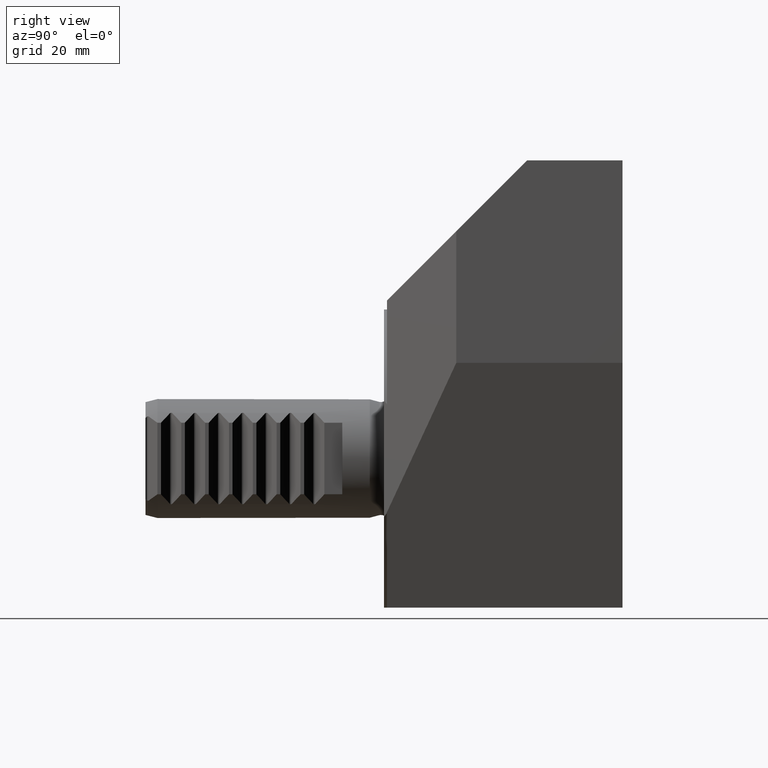
[diagram: clean part render]
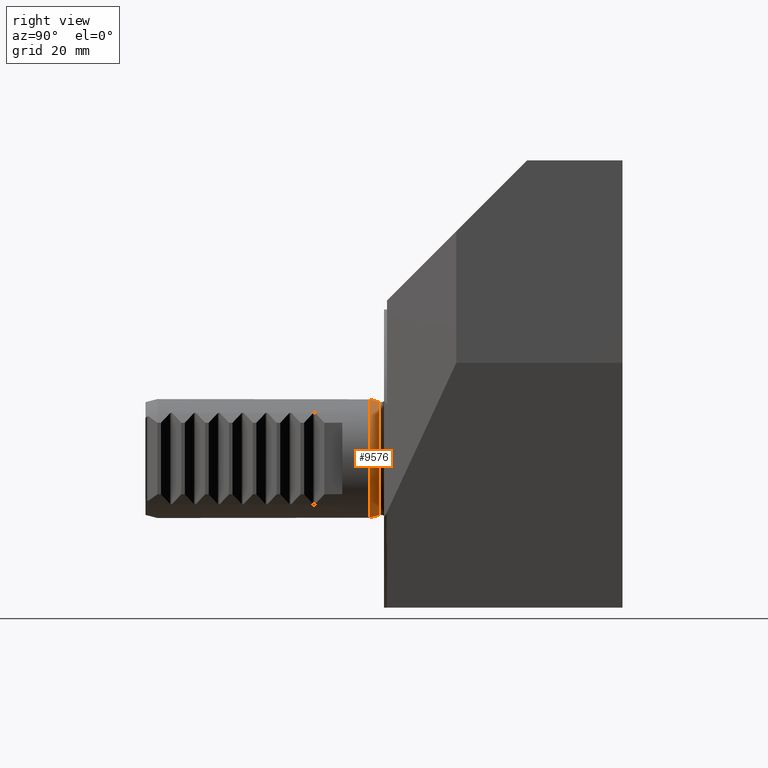
[diagram: same view with one face highlighted and labeled with its STEP entity id]
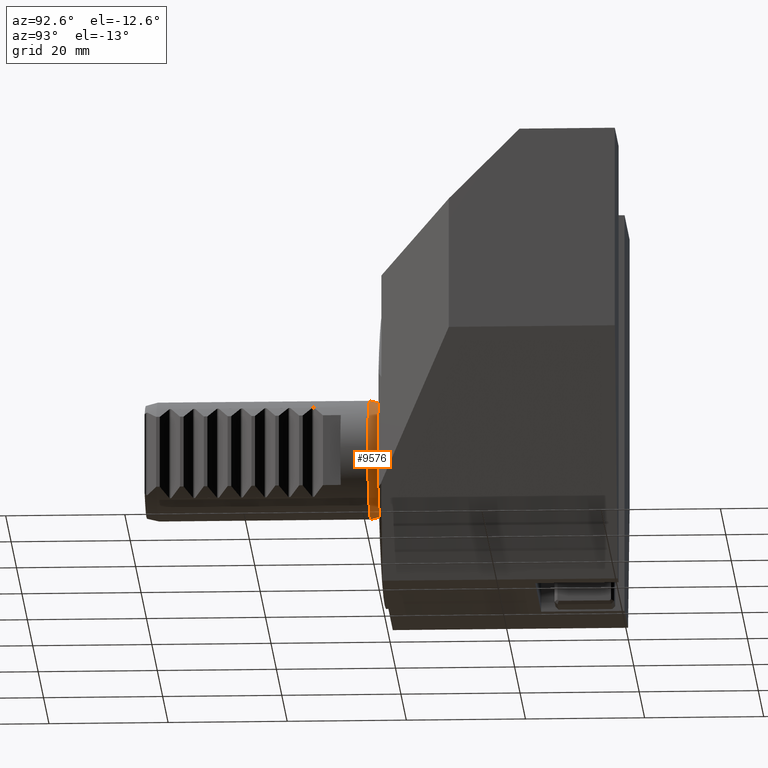
[diagram: same view with one face highlighted and labeled with its STEP entity id]
A machine part, right view. The second image highlights one B-rep face of the part: STEP entity #9576.
A second angle (auxiliary view) of the same face is appended — the face is thin or edge-on in the first view.
In plain terms, the highlighted conical surface has half-angle 15 deg.
Its self-contained STEP definition (entity closure, byte-faithful):
#293 = VERTEX_POINT ( 'NONE', #3979 ) ;
#296 = CARTESIAN_POINT ( 'NONE',  ( 3.108890821621605814E-16, -2.399999999999997691, 0.000000000000000000 ) ) ;
#1012 = ORIENTED_EDGE ( 'NONE', *, *, #2268, .F. ) ;
#1102 = EDGE_LOOP ( 'NONE', ( #11017 ) ) ;
#2268 = EDGE_CURVE ( 'NONE', #293, #293, #6432, .T. ) ;
#3979 = CARTESIAN_POINT ( 'NONE',  ( -9.577259338968746150, -0.8223103746060639319, 0.000000000000000000 ) ) ;
#4121 = AXIS2_PLACEMENT_3D ( 'NONE', #13935, #14094, #5139 ) ;
#4484 = AXIS2_PLACEMENT_3D ( 'NONE', #296, #5517, #5684 ) ;
#5139 = DIRECTION ( 'NONE',  ( 1.000000000000000000, 1.245264796037645269E-16, 0.000000000000000000 ) ) ;
#5517 = DIRECTION ( 'NONE',  ( -1.295371175675670281E-16, 1.000000000000000000, -0.000000000000000000 ) ) ;
#5684 = DIRECTION ( 'NONE',  ( -1.000000000000000000, -1.301042606982605074E-16, 0.000000000000000000 ) ) ;
#6432 = CIRCLE ( 'NONE', #14534, 9.577259338968746150 ) ;
#7147 = EDGE_CURVE ( 'NONE', #8197, #8197, #15534, .T. ) ;
#7447 = DIRECTION ( 'NONE',  ( -1.000000000000000000, -1.245264796037645269E-16, 0.000000000000000000 ) ) ;
#8197 = VERTEX_POINT ( 'NONE', #10590 ) ;
#9576 = ADVANCED_FACE ( 'Defeature completata2_11', ( #11218, #11382 ), #12772, .T. ) ;
#10590 = CARTESIAN_POINT ( 'NONE',  ( -10.00000000000000178, -2.399999999999999023, 0.000000000000000000 ) ) ;
#11017 = ORIENTED_EDGE ( 'NONE', *, *, #7147, .T. ) ;
#11218 = FACE_OUTER_BOUND ( 'NONE', #1102, .T. ) ;
#11382 = FACE_BOUND ( 'NONE', #11653, .T. ) ;
#11653 = EDGE_LOOP ( 'NONE', ( #1012 ) ) ;
#12772 = CONICAL_SURFACE ( 'NONE', #4121, 9.577259338968746150, 0.2617993877991435236 ) ;
#13935 = CARTESIAN_POINT ( 'NONE',  ( 1.065197156723756385E-16, -0.8223103746060628216, 0.000000000000000000 ) ) ;
#14094 = DIRECTION ( 'NONE',  ( 1.295371175675670281E-16, -1.000000000000000000, 0.000000000000000000 ) ) ;
#14534 = AXIS2_PLACEMENT_3D ( 'NONE', #15169, #16336, #7447 ) ;
#15169 = CARTESIAN_POINT ( 'NONE',  ( 1.065197156723756385E-16, -0.8223103746060628216, 0.000000000000000000 ) ) ;
#15534 = CIRCLE ( 'NONE', #4484, 10.00000000000000178 ) ;
#16336 = DIRECTION ( 'NONE',  ( -1.295371175675670281E-16, 1.000000000000000000, -0.000000000000000000 ) ) ;